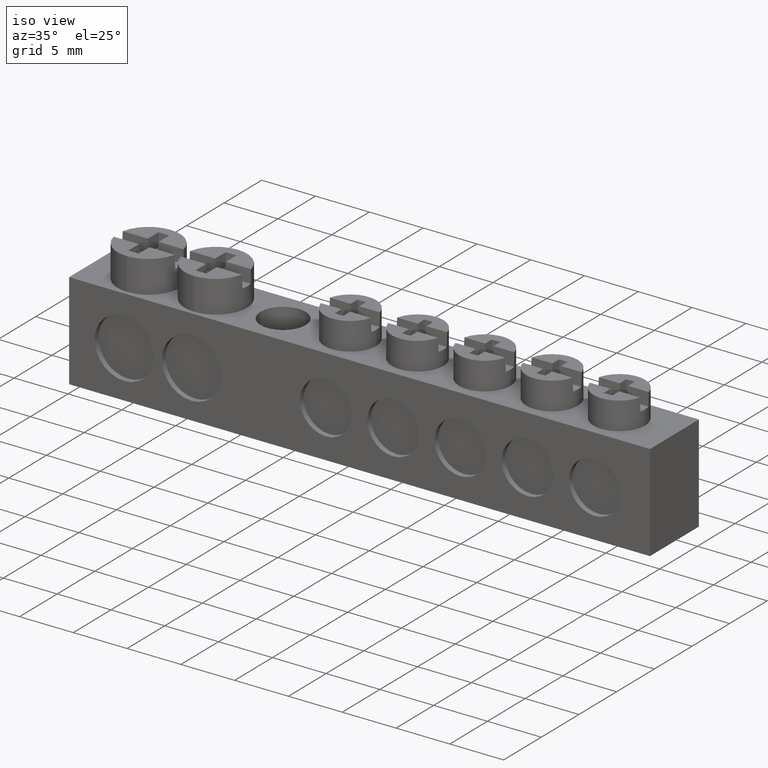
[diagram: clean part render]
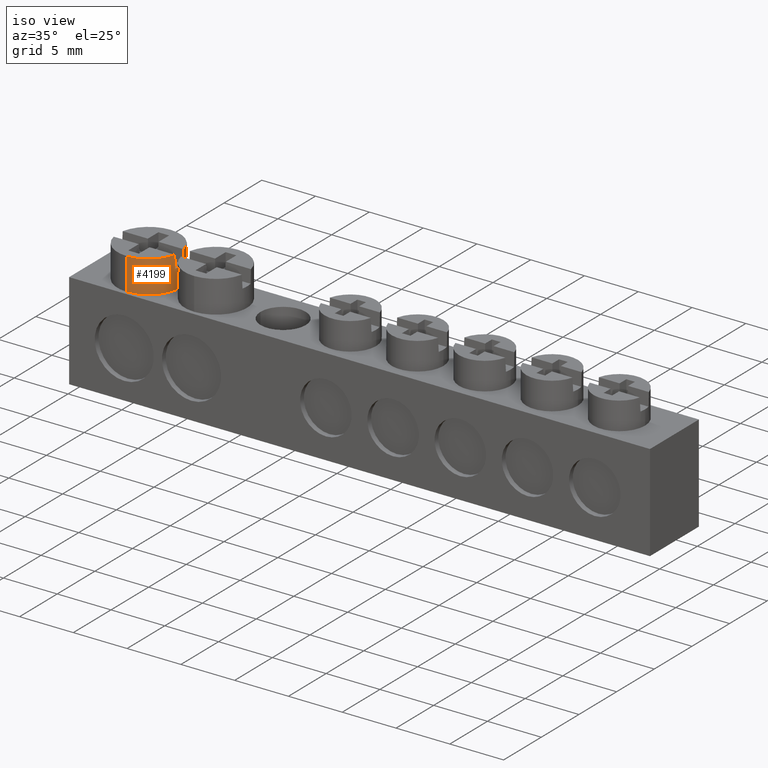
[diagram: same view with one face highlighted and labeled with its STEP entity id]
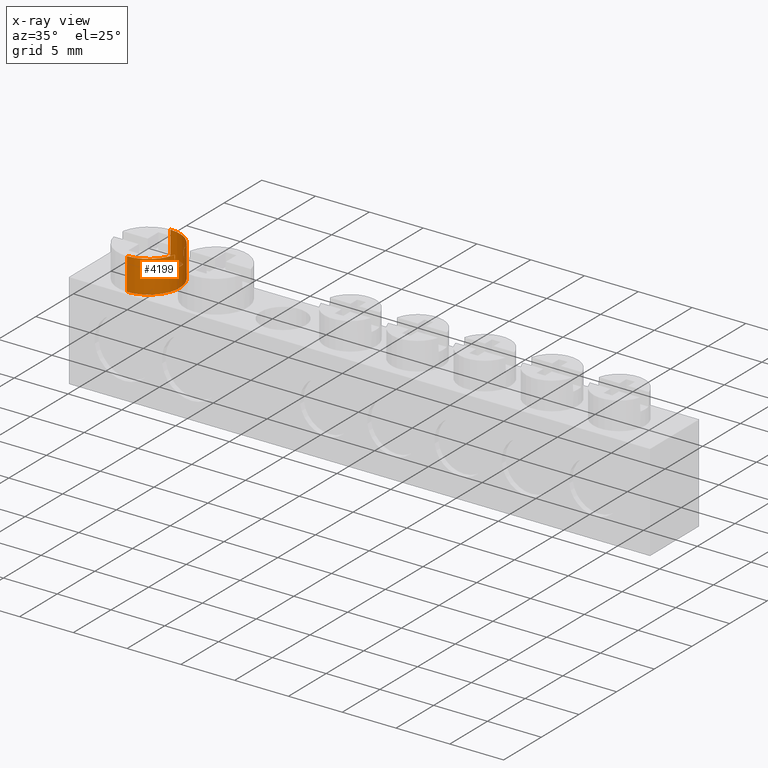
[diagram: x-ray of the same camera — body ghosted, the highlighted face saturated]
A machine part, iso view. The second image highlights one B-rep face of the part: STEP entity #4199.
The next image is the same camera in x-ray: the body ghosted, the highlighted face saturated — about 1% of this face is hidden behind the body in this view.
In plain terms, the highlighted cylindrical surface (partial cylindrical patch) has radius 2.9 mm, axis along (0, -0, 1).
Its self-contained STEP definition (entity closure, byte-faithful):
#199 = ORIENTED_EDGE ( 'NONE', *, *, #4266, .T. ) ;
#200 = ORIENTED_EDGE ( 'NONE', *, *, #4279, .T. ) ;
#201 = ORIENTED_EDGE ( 'NONE', *, *, #4275, .T. ) ;
#211 = ORIENTED_EDGE ( 'NONE', *, *, #4255, .F. ) ;
#242 = ORIENTED_EDGE ( 'NONE', *, *, #4291, .T. ) ;
#247 = ORIENTED_EDGE ( 'NONE', *, *, #4251, .T. ) ;
#248 = ORIENTED_EDGE ( 'NONE', *, *, #4268, .T. ) ;
#266 = ORIENTED_EDGE ( 'NONE', *, *, #4256, .T. ) ;
#601 = VERTEX_POINT ( 'NONE', #2185 ) ;
#609 = VERTEX_POINT ( 'NONE', #2178 ) ;
#634 = VERTEX_POINT ( 'NONE', #2190 ) ;
#643 = VERTEX_POINT ( 'NONE', #2182 ) ;
#646 = VERTEX_POINT ( 'NONE', #2165 ) ;
#650 = VERTEX_POINT ( 'NONE', #2147 ) ;
#655 = VERTEX_POINT ( 'NONE', #2153 ) ;
#659 = VERTEX_POINT ( 'NONE', #2261 ) ;
#826 = EDGE_LOOP ( 'NONE', ( #199, #247, #242, #200, #201, #266, #248, #211 ) ) ;
#944 =( BOUNDED_CURVE ( )  B_SPLINE_CURVE ( 3, ( #4450, #4440, #4467, #4452 ),
 .UNSPECIFIED., .F., .T. ) 
 B_SPLINE_CURVE_WITH_KNOTS ( ( 4, 4 ),
 ( 4.898675119793457700, 4.920790786976437100 ),
 .UNSPECIFIED. ) 
 CURVE ( )  GEOMETRIC_REPRESENTATION_ITEM ( )  RATIONAL_B_SPLINE_CURVE ( ( 1.000000000000000000, 0.9999592418540675900, 0.9999592418540675900, 1.000000000000000000 ) ) 
 REPRESENTATION_ITEM ( '' )  );
#949 =( BOUNDED_CURVE ( )  B_SPLINE_CURVE ( 3, ( #4521, #4516, #4534, #4542 ),
 .UNSPECIFIED., .F., .F. ) 
 B_SPLINE_CURVE_WITH_KNOTS ( ( 4, 4 ),
 ( 1.362394520203150000, 1.384510187386129000 ),
 .UNSPECIFIED. ) 
 CURVE ( )  GEOMETRIC_REPRESENTATION_ITEM ( )  RATIONAL_B_SPLINE_CURVE ( ( 1.000000000000000000, 0.9999592418540675900, 0.9999592418540675900, 1.000000000000000000 ) ) 
 REPRESENTATION_ITEM ( '' )  );
#1118 = AXIS2_PLACEMENT_3D ( 'NONE', #4080, #4053, #4076 ) ;
#1184 = VECTOR ( 'NONE', #4469, 1000.000000000000000 ) ;
#1199 = CIRCLE ( 'NONE', #1218, 2.900000000000000400 ) ;
#1202 = CIRCLE ( 'NONE', #1245, 2.900000000000000400 ) ;
#1207 = AXIS2_PLACEMENT_3D ( 'NONE', #4509, #4484, #4495 ) ;
#1215 = VECTOR ( 'NONE', #4437, 1000.000000000000000 ) ;
#1218 = AXIS2_PLACEMENT_3D ( 'NONE', #4489, #4507, #4479 ) ;
#1219 = CIRCLE ( 'NONE', #1207, 2.900000000000000400 ) ;
#1245 = AXIS2_PLACEMENT_3D ( 'NONE', #4477, #4537, #4547 ) ;
#1248 = CIRCLE ( 'NONE', #1267, 2.900000000000000400 ) ;
#1267 = AXIS2_PLACEMENT_3D ( 'NONE', #4560, #4569, #4581 ) ;
#2147 = CARTESIAN_POINT ( 'NONE',  ( 5.225000000000004100, 6.149999999999999500, 12.00000000000001800 ) ) ;
#2153 = CARTESIAN_POINT ( 'NONE',  ( 8.074333522417765300, 2.710279259221586300, 10.80000000000001100 ) ) ;
#2165 = CARTESIAN_POINT ( 'NONE',  ( 5.225000000000004100, 0.3499999999999992000, 9.000000000000001800 ) ) ;
#2178 = CARTESIAN_POINT ( 'NONE',  ( 8.062800572163990200, 3.847400964701055900, 12.00000000000000400 ) ) ;
#2182 = CARTESIAN_POINT ( 'NONE',  ( 5.225000000000004100, 6.149999999999999500, 9.000000000000001800 ) ) ;
#2185 = CARTESIAN_POINT ( 'NONE',  ( 8.075317456377622000, 3.784500138324608200, 10.80000000000001100 ) ) ;
#2190 = CARTESIAN_POINT ( 'NONE',  ( 5.225000000000004100, 0.3499999999999987600, 12.00000000000000400 ) ) ;
#2261 = CARTESIAN_POINT ( 'NONE',  ( 8.061701431121857600, 2.647401468080758500, 12.00000000000000400 ) ) ;
#4053 = DIRECTION ( 'NONE',  ( 6.245004513516505500E-017, -1.110223024625156500E-016, 1.000000000000000000 ) ) ;
#4071 = CYLINDRICAL_SURFACE ( 'NONE', #1118, 2.900000000000000400 ) ;
#4076 = DIRECTION ( 'NONE',  ( 0.0000000000000000000, -1.000000000000000000, 0.0000000000000000000 ) ) ;
#4080 = CARTESIAN_POINT ( 'NONE',  ( 5.225000000000004100, 3.249999999999999600, 9.000000000000003600 ) ) ;
#4085 = FACE_OUTER_BOUND ( 'NONE', #826, .T. ) ;
#4199 = ADVANCED_FACE ( 'NONE', ( #4085 ), #4071, .T. ) ;
#4251 = EDGE_CURVE ( 'NONE', #643, #650, #4439, .T. ) ;
#4255 = EDGE_CURVE ( 'NONE', #646, #634, #4471, .T. ) ;
#4256 = EDGE_CURVE ( 'NONE', #655, #659, #944, .T. ) ;
#4266 = EDGE_CURVE ( 'NONE', #646, #643, #1199, .T. ) ;
#4268 = EDGE_CURVE ( 'NONE', #659, #634, #1219, .T. ) ;
#4275 = EDGE_CURVE ( 'NONE', #601, #655, #1202, .T. ) ;
#4279 = EDGE_CURVE ( 'NONE', #609, #601, #949, .T. ) ;
#4291 = EDGE_CURVE ( 'NONE', #650, #609, #1248, .T. ) ;
#4437 = DIRECTION ( 'NONE',  ( 6.245004513516505500E-017, -1.110223024625156500E-016, 1.000000000000000000 ) ) ;
#4439 = LINE ( 'NONE', #4475, #1215 ) ;
#4440 = CARTESIAN_POINT ( 'NONE',  ( 8.070354679906383700, 2.689273860519022300, 11.20087625544947800 ) ) ;
#4450 = CARTESIAN_POINT ( 'NONE',  ( 8.074333522417765300, 2.710279259221586300, 10.80000000000001100 ) ) ;
#4451 = CARTESIAN_POINT ( 'NONE',  ( 5.225000000000004100, 0.3499999999999992000, 9.000000000000003600 ) ) ;
#4452 = CARTESIAN_POINT ( 'NONE',  ( 8.061701431121857600, 2.647401468080758500, 12.00000000000000400 ) ) ;
#4467 = CARTESIAN_POINT ( 'NONE',  ( 8.066143811180547000, 2.668313742509865100, 11.60089255937237600 ) ) ;
#4469 = DIRECTION ( 'NONE',  ( 6.245004513516505500E-017, -1.110223024625156500E-016, 1.000000000000000000 ) ) ;
#4471 = LINE ( 'NONE', #4451, #1184 ) ;
#4475 = CARTESIAN_POINT ( 'NONE',  ( 5.225000000000004100, 6.149999999999999500, 9.000000000000003600 ) ) ;
#4477 = CARTESIAN_POINT ( 'NONE',  ( 5.225000000000004100, 3.249999999999999600, 10.80000000000001100 ) ) ;
#4479 = DIRECTION ( 'NONE',  ( 0.0000000000000000000, -1.000000000000000000, 0.0000000000000000000 ) ) ;
#4484 = DIRECTION ( 'NONE',  ( -6.245004513516505500E-017, 1.110223024625156500E-016, -1.000000000000000000 ) ) ;
#4489 = CARTESIAN_POINT ( 'NONE',  ( 5.225000000000004100, 3.249999999999999600, 9.000000000000001800 ) ) ;
#4495 = DIRECTION ( 'NONE',  ( -8.972707634362794300E-016, -1.000000000000000000, 0.0000000000000000000 ) ) ;
#4507 = DIRECTION ( 'NONE',  ( 6.245004513516505500E-017, -1.110223024625156500E-016, 1.000000000000000000 ) ) ;
#4509 = CARTESIAN_POINT ( 'NONE',  ( 5.225000000000004100, 3.249999999999999100, 12.00000000000000400 ) ) ;
#4516 = CARTESIAN_POINT ( 'NONE',  ( 8.067204635552888800, 3.826480587360992400, 11.60089255937237400 ) ) ;
#4521 = CARTESIAN_POINT ( 'NONE',  ( 8.062800572163990200, 3.847400964701055900, 12.00000000000000400 ) ) ;
#4534 = CARTESIAN_POINT ( 'NONE',  ( 8.071377100352696800, 3.805512790626991700, 11.20087625544948300 ) ) ;
#4537 = DIRECTION ( 'NONE',  ( -6.245004513516505500E-017, 1.110223024625156500E-016, -1.000000000000000000 ) ) ;
#4542 = CARTESIAN_POINT ( 'NONE',  ( 8.075317456377622000, 3.784500138324608200, 10.80000000000001100 ) ) ;
#4547 = DIRECTION ( 'NONE',  ( 0.0000000000000000000, -1.000000000000000000, 0.0000000000000000000 ) ) ;
#4560 = CARTESIAN_POINT ( 'NONE',  ( 5.225000000000004100, 3.249999999999999100, 12.00000000000001800 ) ) ;
#4569 = DIRECTION ( 'NONE',  ( -6.245004513516505500E-017, 1.110223024625156500E-016, -1.000000000000000000 ) ) ;
#4581 = DIRECTION ( 'NONE',  ( 0.0000000000000000000, -1.000000000000000000, 0.0000000000000000000 ) ) ;